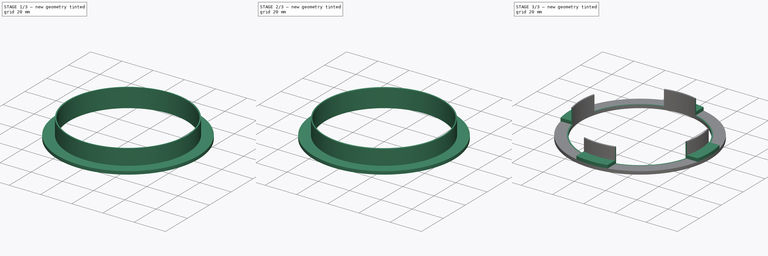
[diagram: build sequence overview — one tinted view per stage of 3, left to right]
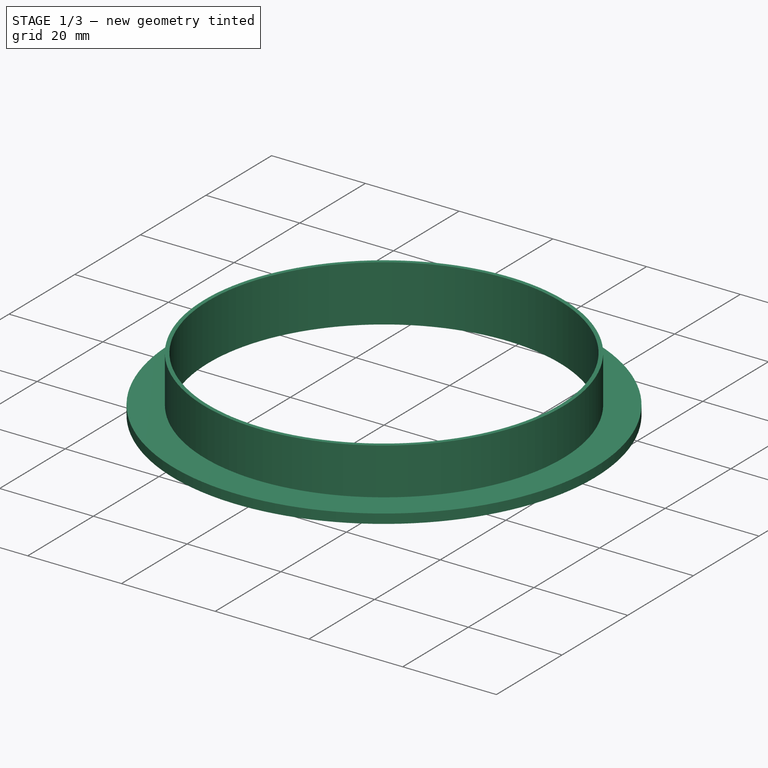
[diagram: stage 1 of 3 — iso view after this stage's code; geometry added in this stage tinted green]
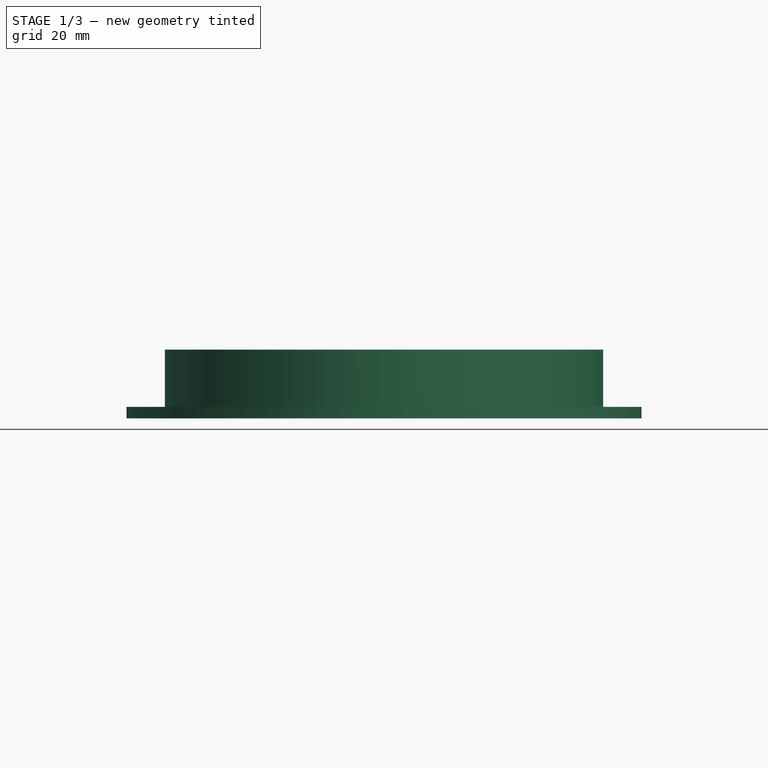
[diagram: stage 1 of 3 — front view after this stage's code; geometry added in this stage tinted green]
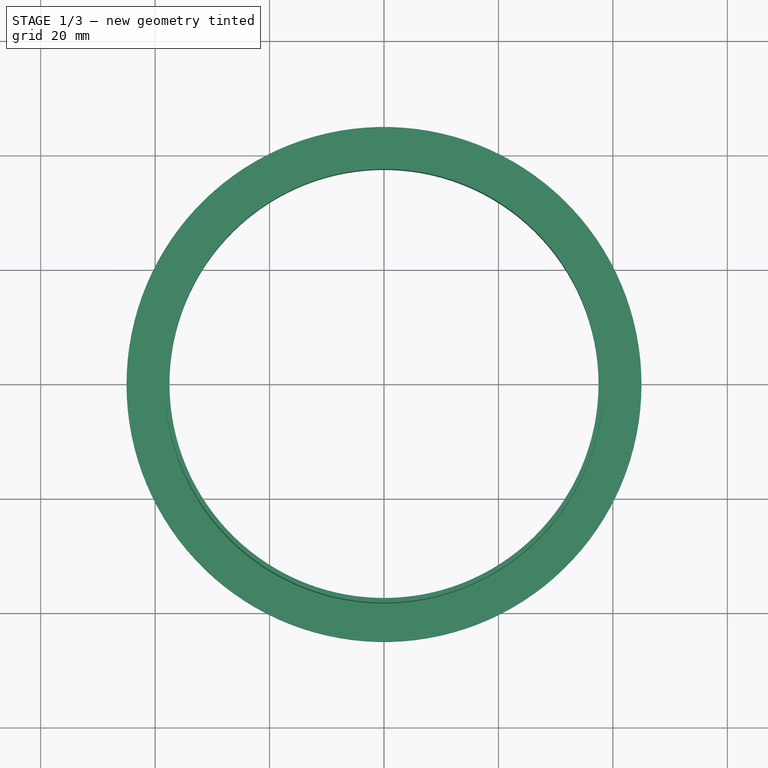
[diagram: stage 1 of 3 — top view after this stage's code; geometry added in this stage tinted green]
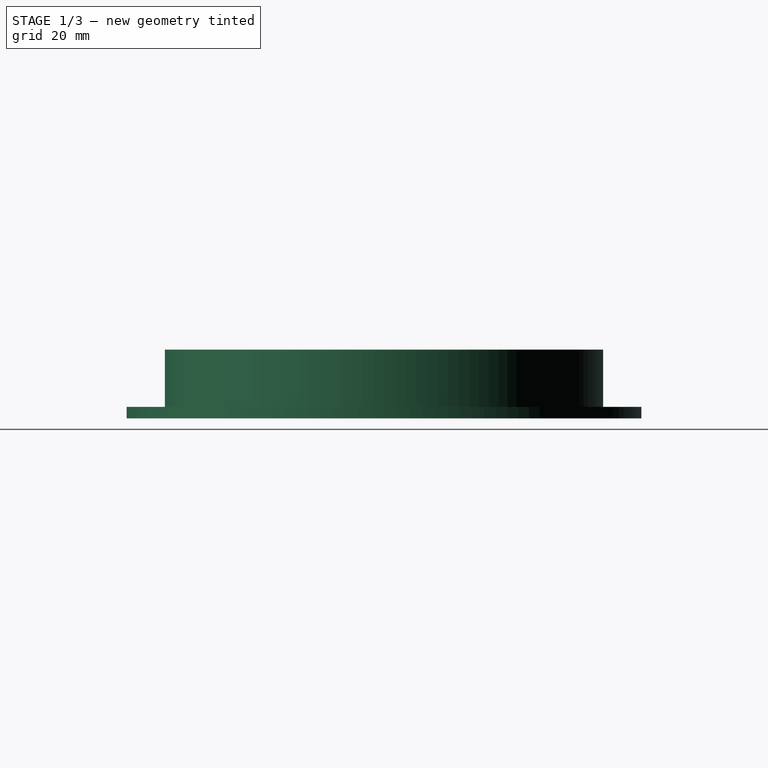
[diagram: stage 1 of 3 — right view after this stage's code; geometry added in this stage tinted green]
FCSTD DOCUMENT  (FreeCAD 0.19R24276 (Git))
Label: Ring_under_stripe_v1
License: All rights reserved
LicenseURL: http://en.wikipedia.org/wiki/All_rights_reserved
objects: Sketcher::SketchObject×4, PartDesign::Pad×3, PartDesign::Chamfer×2, PartDesign::Pocket×1, PartDesign::Body×1
note: 17 computed .brp shape members not serialized (recipe doc carries the construction recipe); baked Part::Feature solids carry a one-line shape summary decoded from their .brp

FEATURE [Sketcher::SketchObject] Sketch
  FullyConstrained = true
  MapMode = 5
  Support = -> [XY_Plane]
  sketch-geometry (2):
    g0: Circle CenterX=0 CenterY=0 CenterZ=0 NormalX=0 NormalY=0 NormalZ=1 AngleXU=0 Radius=45
    g1: Circle CenterX=0 CenterY=0 CenterZ=0 NormalX=0 NormalY=0 NormalZ=1 AngleXU=0 Radius=37.5
  constraints (4):
    c: Coincident(g0,g-1)
    c: Coincident(g1,g0)
    c: Diameter(g0) = 90
    c: Diameter(g1) = 75
FEATURE [PartDesign::Pad] Pad
  Direction = (1,1,1)
  Length = 2
  Length2 = 100
  Profile = -> Sketch
  Type = 0
FEATURE [Sketcher::SketchObject] Sketch001
  FullyConstrained = true
  MapMode = 5
  Placement = pos=(0,0,2) rot=(0,0,1;0rad)
  Support = -> [Pad]
  sketch-geometry (2):
    g0: Circle CenterX=0 CenterY=0 CenterZ=0 NormalX=0 NormalY=0 NormalZ=1 AngleXU=0 Radius=37.5
    g1: Circle CenterX=0 CenterY=0 CenterZ=0 NormalX=0 NormalY=0 NormalZ=1 AngleXU=0 Radius=38.3
  constraints (4):
    c: Coincident(g0,g-1)
    c: Diameter(g0) = 75
    c: Coincident(g1,g0)
    c: Diameter(g1) = 76.6
FEATURE [PartDesign::Pad] Pad001
  BaseFeature = -> Pad
  Direction = (1,1,1)
  Length = 10
  Length2 = 100
  Profile = -> Sketch001
  Type = 0
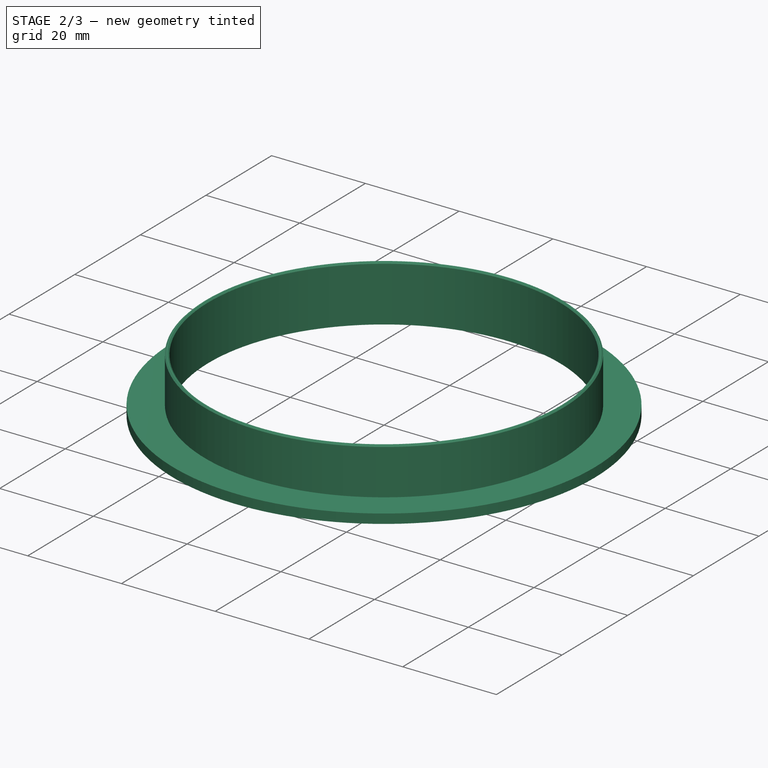
[diagram: stage 2 of 3 — iso view after this stage's code; geometry added in this stage tinted green]
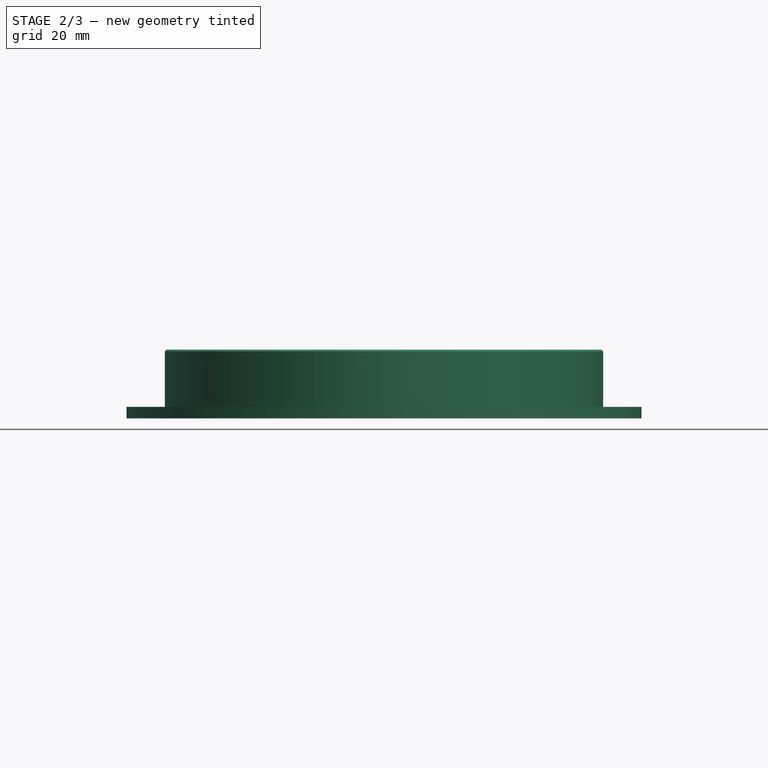
[diagram: stage 2 of 3 — front view after this stage's code; geometry added in this stage tinted green]
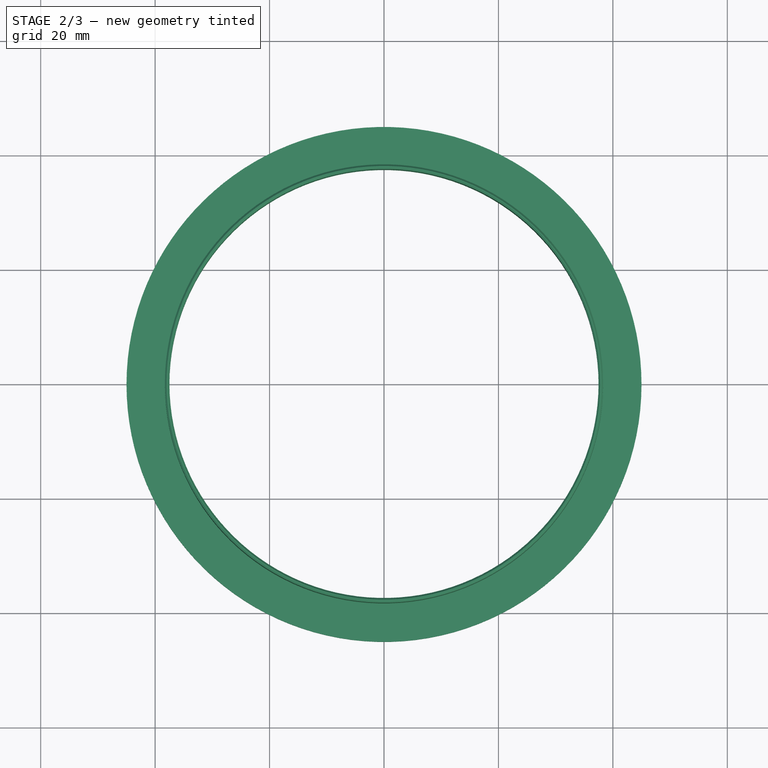
[diagram: stage 2 of 3 — top view after this stage's code; geometry added in this stage tinted green]
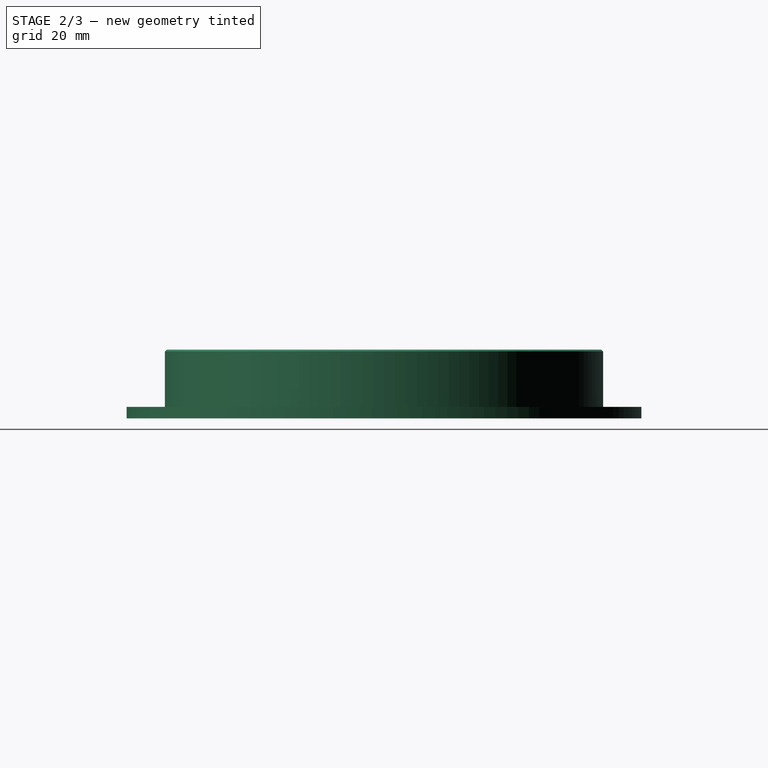
[diagram: stage 2 of 3 — right view after this stage's code; geometry added in this stage tinted green]
FEATURE [PartDesign::Chamfer] Chamfer
  Angle = 45
  Base = -> Pad001 [Edge11]
  BaseFeature = -> Pad001
  ChamferType = 0
  FlipDirection = false
  Size = 0.3
  Size2 = 1
  SupportTransform = false
FEATURE [PartDesign::Chamfer] Chamfer001
  Angle = 45
  Base = -> Chamfer [Edge8]
  BaseFeature = -> Chamfer
  ChamferType = 0
  FlipDirection = false
  Size = 0.3
  Size2 = 1
  SupportTransform = false
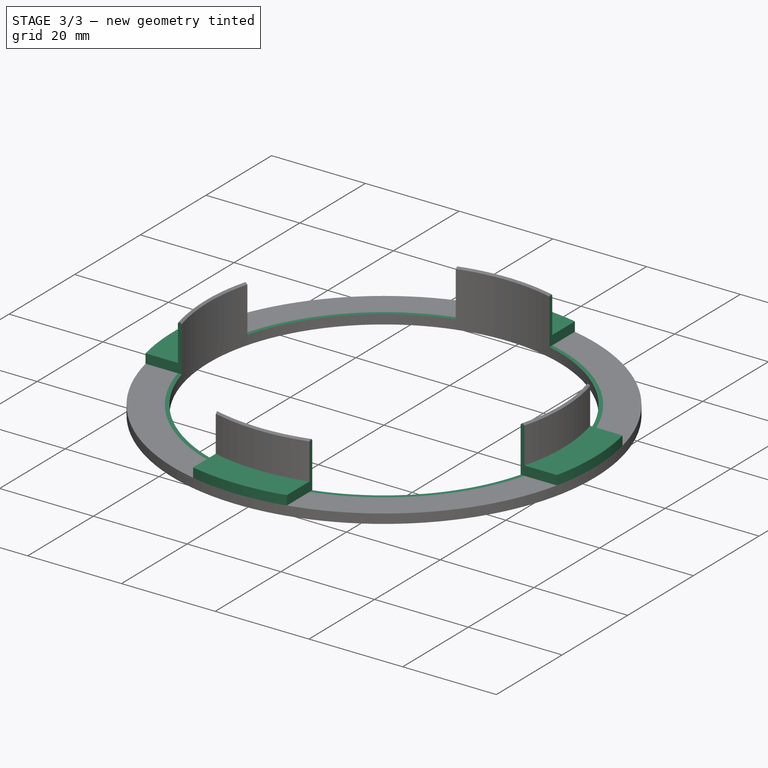
[diagram: stage 3 of 3 — iso view after this stage's code; geometry added in this stage tinted green]
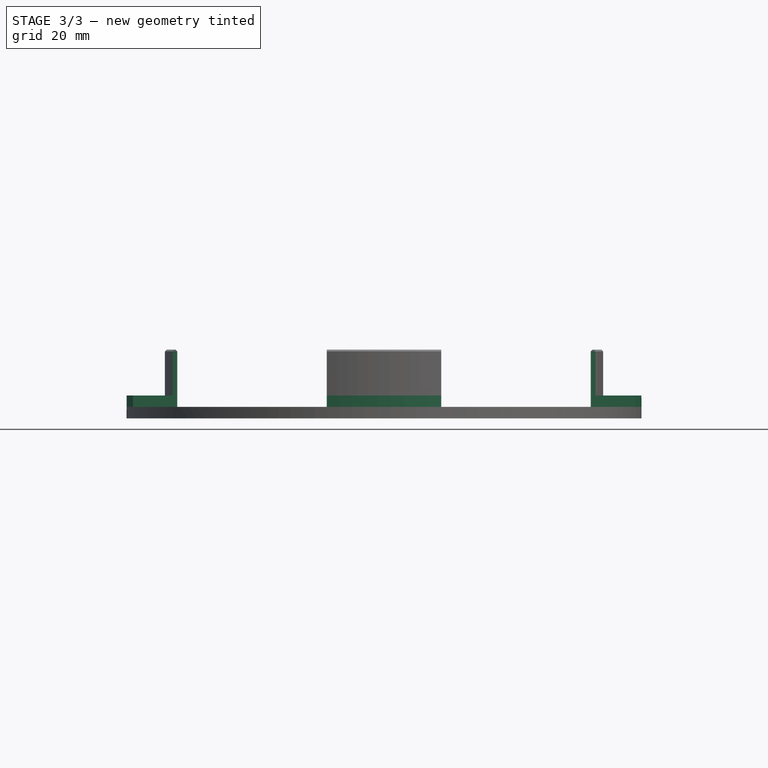
[diagram: stage 3 of 3 — front view after this stage's code; geometry added in this stage tinted green]
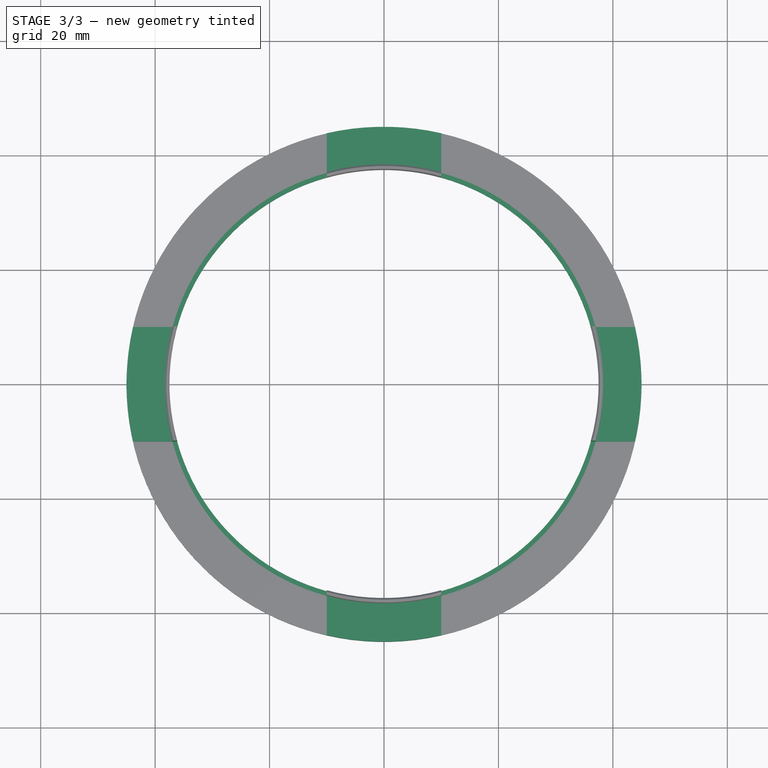
[diagram: stage 3 of 3 — top view after this stage's code; geometry added in this stage tinted green]
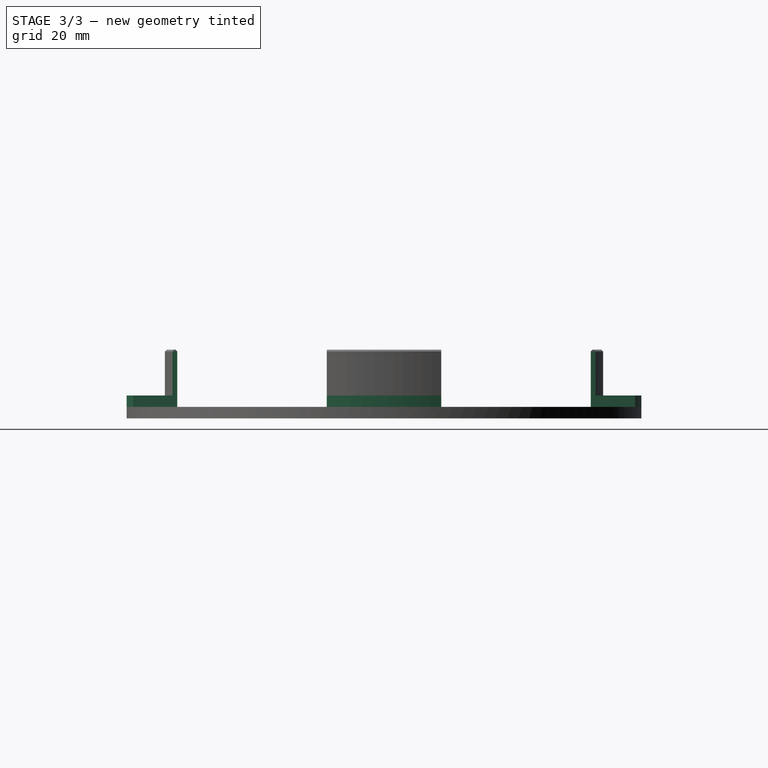
[diagram: stage 3 of 3 — right view after this stage's code; geometry added in this stage tinted green]
FEATURE [Sketcher::SketchObject] Sketch002
  FullyConstrained = false
  MapMode = 5
  Placement = pos=(0,0,2) rot=(0,0,1;0rad)
  Support = -> [Chamfer001]
  sketch-geometry (20):
    g0: LineSegment StartX=10 StartY=-10 StartZ=0 EndX=-10 EndY=-10 EndZ=0
    g1: LineSegment StartX=-10 StartY=-10 StartZ=0 EndX=-10 EndY=10 EndZ=0
    g2: LineSegment StartX=-10 StartY=10 StartZ=0 EndX=10 EndY=10 EndZ=0
    g3: LineSegment StartX=10 StartY=10 StartZ=0 EndX=10 EndY=-10 EndZ=0
    g4: LineSegment StartX=-48.7755 StartY=51.5341 StartZ=0 EndX=-10 EndY=51.5341 EndZ=0
    g5: LineSegment StartX=-10 StartY=51.5341 StartZ=0 EndX=-10 EndY=10 EndZ=0
    g6: LineSegment StartX=-10 StartY=10 StartZ=0 EndX=-48.7755 EndY=10 EndZ=0
    g7: LineSegment StartX=-48.7755 StartY=10 StartZ=0 EndX=-48.7755 EndY=51.5341 EndZ=0
    g8: LineSegment StartX=10 StartY=63.0762 StartZ=0 EndX=102.954 EndY=63.0762 EndZ=0
    g9: LineSegment StartX=102.954 StartY=63.0762 StartZ=0 EndX=102.954 EndY=10 EndZ=0
    g10: LineSegment StartX=102.954 StartY=10 StartZ=0 EndX=10 EndY=10 EndZ=0
    g11: LineSegment StartX=10 StartY=10 StartZ=0 EndX=10 EndY=63.0762 EndZ=0
    g12: LineSegment StartX=10 StartY=-10 StartZ=0 EndX=103.597 EndY=-10 EndZ=0
    g13: LineSegment StartX=103.597 StartY=-10 StartZ=0 EndX=103.597 EndY=-53.3923 EndZ=0
    g14: LineSegment StartX=103.597 StartY=-53.3923 StartZ=0 EndX=10 EndY=-53.3923 EndZ=0
    g15: LineSegment StartX=10 StartY=-53.3923 StartZ=0 EndX=10 EndY=-10 EndZ=0
    g16: LineSegment StartX=-71.2848 StartY=-10 StartZ=0 EndX=-10 EndY=-10 EndZ=0
    g17: LineSegment StartX=-10 StartY=-10 StartZ=0 EndX=-10 EndY=-68.714 EndZ=0
    g18: LineSegment StartX=-10 StartY=-68.714 StartZ=0 EndX=-71.2848 EndY=-68.714 EndZ=0
    g19: LineSegment StartX=-71.2848 StartY=-68.714 StartZ=0 EndX=-71.2848 EndY=-10 EndZ=0
  constraints (48):
    c: Coincident(g0,g1)
    c: Coincident(g2,g3)
    c: Coincident(g3,g0)
    c: Horizontal(g0)
    c: Horizontal(g2)
    c: Vertical(g1)
    c: Vertical(g3)
    c: Symmetric(g1,g0,g-1)
    c: DistanceX(g2,g2) = 20
    c: Equal(g2,g3)
    c: Coincident(g4,g5)
    c: Coincident(g5,g6)
    c: Coincident(g6,g7)
    c: Coincident(g7,g4)
    c: Horizontal(g4)
    c: Horizontal(g6)
    c: Vertical(g5)
    c: Vertical(g7)
    c: Coincident(g1,g5)
    c: Coincident(g8,g9)
    c: Coincident(g9,g10)
    c: Coincident(g10,g11)
    c: Coincident(g11,g8)
    c: Horizontal(g8)
    c: Horizontal(g10)
    c: Vertical(g9)
    c: Vertical(g11)
    c: Coincident(g10,g2)
    c: Coincident(g12,g13)
    c: Coincident(g13,g14)
    c: Coincident(g14,g15)
    c: Coincident(g15,g12)
    c: Horizontal(g12)
    c: Horizontal(g14)
    c: Vertical(g13)
    c: Vertical(g15)
    c: Coincident(g0,g12)
    c: DistanceX(g0,g0) = 20
    c: Equal(g1,g3)
    c: Coincident(g16,g17)
    c: Coincident(g17,g18)
    c: Coincident(g18,g19)
    c: Coincident(g19,g16)
    c: Horizontal(g16)
    c: Horizontal(g18)
    c: Vertical(g17)
    c: Vertical(g19)
    c: Coincident(g0,g16)
FEATURE [PartDesign::Pocket] Pocket
  BaseFeature = -> Chamfer001
  Length = 5
  Length2 = 100
  Profile = -> Sketch002
  Reversed = true
  Type = 1
FEATURE [Sketcher::SketchObject] Sketch003
  FullyConstrained = false
  MapMode = 5
  Placement = pos=(0,0,2) rot=(0,0,1;0rad)
  Support = -> [Pocket]
  sketch-geometry (16):
    g0: ArcOfCircle CenterX=0 CenterY=0 CenterZ=0 NormalX=0 NormalY=0 NormalZ=1 AngleXU=0 Radius=45 StartAngle=1.3467 EndAngle=1.79489
    g1: ArcOfCircle CenterX=0 CenterY=0 CenterZ=0 NormalX=0 NormalY=0 NormalZ=1 AngleXU=0 Radius=37.5 StartAngle=1.30086 EndAngle=1.84073
    g2: LineSegment StartX=10 StartY=43.8748 StartZ=0 EndX=10 EndY=36.1421 EndZ=0
    g3: LineSegment StartX=-10 StartY=-43.8748 StartZ=0 EndX=-10 EndY=-36.1421 EndZ=0
    g4: LineSegment StartX=-43.8748 StartY=10 StartZ=0 EndX=-36.1421 EndY=10 EndZ=0
    g5: LineSegment StartX=43.8748 StartY=-10 StartZ=0 EndX=36.1421 EndY=-10 EndZ=0
    g6: ArcOfCircle CenterX=0 CenterY=0 CenterZ=0 NormalX=0 NormalY=0 NormalZ=1 AngleXU=0 Radius=37.5 StartAngle=2.87166 EndAngle=3.41153
    g7: ArcOfCircle CenterX=0 CenterY=0 CenterZ=0 NormalX=0 NormalY=0 NormalZ=1 AngleXU=0 Radius=45 StartAngle=2.9175 EndAngle=3.36569
    g8: ArcOfCircle CenterX=0 CenterY=0 CenterZ=0 NormalX=0 NormalY=0 NormalZ=1 AngleXU=0 Radius=37.5 StartAngle=4.44246 EndAngle=4.98232
    g9: ArcOfCircle CenterX=0 CenterY=0 CenterZ=0 NormalX=0 NormalY=0 NormalZ=1 AngleXU=0 Radius=45 StartAngle=4.4883 EndAngle=4.93648
    g10: ArcOfCircle CenterX=0 CenterY=0 CenterZ=0 NormalX=0 NormalY=0 NormalZ=1 AngleXU=0 Radius=45 StartAngle=6.05909 EndAngle=6.50728
    g11: ArcOfCircle CenterX=0 CenterY=0 CenterZ=0 NormalX=0 NormalY=0 NormalZ=1 AngleXU=0 Radius=37.5 StartAngle=6.01325 EndAngle=6.55312
    g12: LineSegment StartX=36.1421 StartY=10 StartZ=0 EndX=43.8748 EndY=10 EndZ=0
    g13: LineSegment StartX=-10 StartY=36.1421 StartZ=0 EndX=-10 EndY=43.8748 EndZ=0
    g14: LineSegment StartX=10 StartY=-36.1421 StartZ=0 EndX=10 EndY=-43.8748 EndZ=0
    g15: LineSegment StartX=-36.1421 StartY=-10 StartZ=0 EndX=-43.8748 EndY=-10 EndZ=0
  constraints (41):
    c: Diameter(g0) = 90
    c: Coincident(g1,g0)
    c: Diameter(g1) = 75
    c: Vertical(g2)
    c: Vertical(g3)
    c: Horizontal(g4)
    c: Horizontal(g5)
    c: PointOnObject(g11,g4)
    c: Equal(g1,g6)
    c: Coincident(g1,g6)
    c: Equal(g0,g7)
    c: PointOnObject(g0,g3)
    c: Coincident(g0,g7)
    c: Equal(g6,g8)
    c: Coincident(g6,g8)
    c: Equal(g7,g9)
    c: Coincident(g7,g9)
    c: Equal(g9,g10)
    c: PointOnObject(g9,g2)
    c: Coincident(g9,g10)
    c: Equal(g8,g11)
    c: PointOnObject(g8,g2)
    c: Coincident(g8,g11)
    c: Coincident(g5,g10)
    c: Coincident(g12,g10)
    c: Coincident(g4,g6)
    c: PointOnObject(g12,g11)
    c: Coincident(g13,g1)
    c: Tangent(g3,g13)
    c: Coincident(g2,g1)
    c: Coincident(g3,g8)
    c: PointOnObject(g14,g8)
    c: Coincident(g2,g0)
    c: PointOnObject(g13,g0)
    c: Coincident(g4,g7)
    c: Coincident(g15,g7)
    c: Coincident(g15,g6)
    c: Tangent(g5,g15)
    c: Coincident(g5,g11)
    c: PointOnObject(g14,g9)
    c: Coincident(g3,g9)
FEATURE [PartDesign::Pad] Pad002
  BaseFeature = -> Pocket
  Direction = (1,1,1)
  Length = 2
  Length2 = 100
  Profile = -> Sketch003
  Type = 0
FEATURE [PartDesign::Body] Body
  Group = -> [Sketch,Pad,Sketch001,Pad001,Chamfer,Chamfer001,Sketch002,Pocket,Sketch003,Pad002]
  Origin = -> Origin
  Tip = -> Pad002
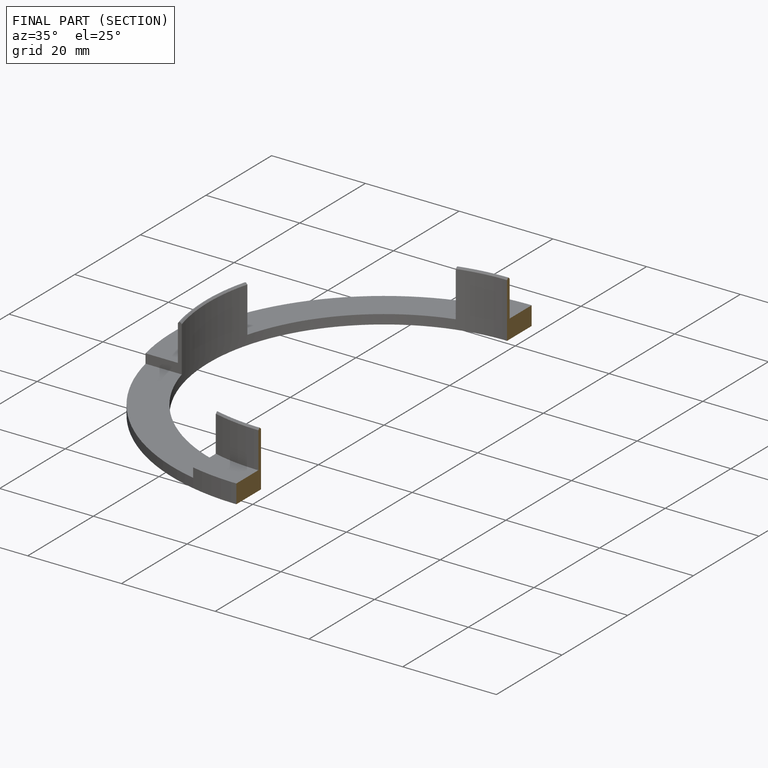
[diagram: finished part — half-section view (interior)]
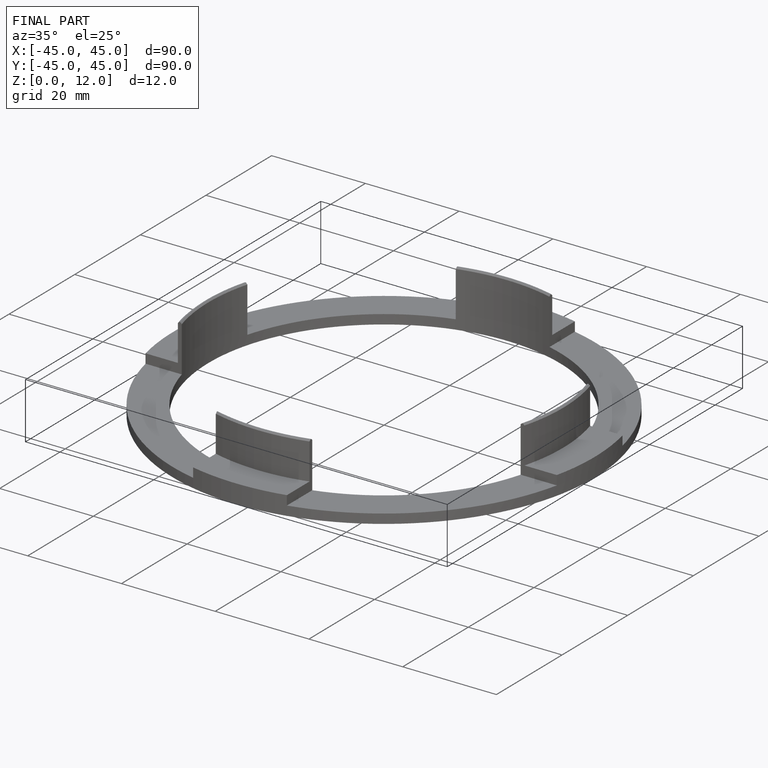
[diagram: finished part — iso view with bounding-box wireframe]
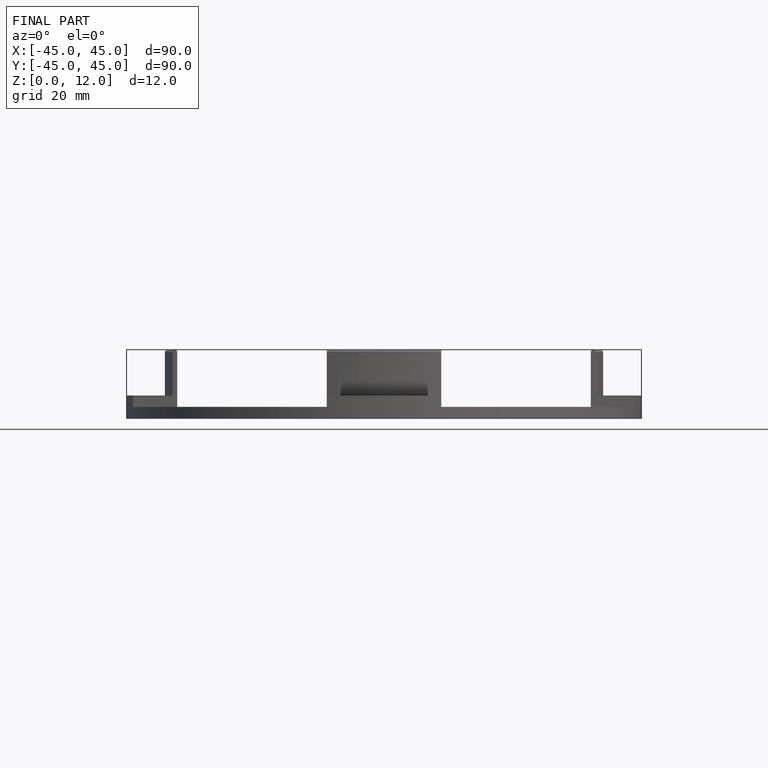
[diagram: finished part — front view with bounding-box wireframe]
